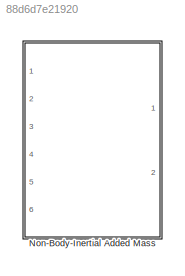
MODEL slx_88d6d7e21920
KIND library
CONFIG AbsTol = auto
CONFIG EnableMultiTasking = off
CONFIG FixedStep = auto
CONFIG MaxStep = auto
CONFIG MinStep = auto
CONFIG RelTol = 1e-3
CONFIG SampleTimeConstraint = Unconstrained
CONFIG Solver = VariableStepAuto
CONFIG SolverName = VariableStepAuto
CONFIG StartTime = 0.0
CONFIG StopTime = 10.0
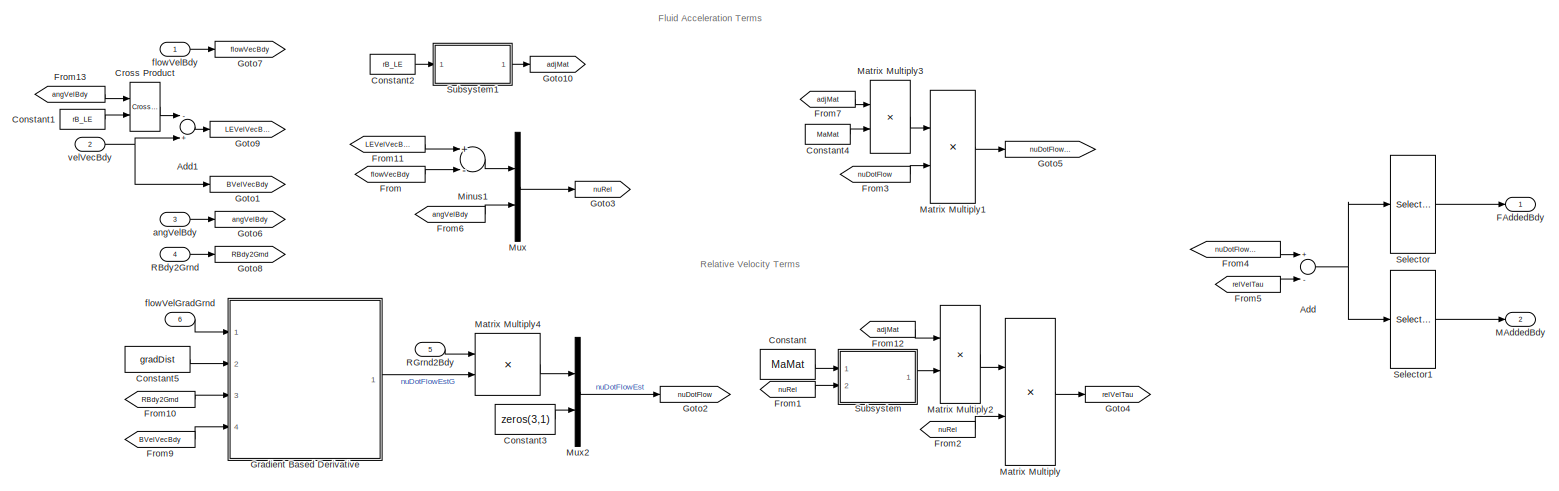
[diagram: Non-Body-Inertial Added Mass - part 1/1, most of the canvas]
BLOCK [SubSystem] Non-Body-Inertial Added Mass
  Ports = [6, 2]
  RequestExecContextInheritance = off
BLOCK [Sum] Non-Body-Inertial Added Mass/Add
  InputSameDT = off
  Inputs = +-
  OutDataTypeStr = Inherit: Inherit via internal rule
  Ports = [2, 1]
  SaturateOnIntegerOverflow = off
BLOCK [Sum] Non-Body-Inertial Added Mass/Add1
  InputSameDT = off
  Inputs = -+
  OutDataTypeStr = Inherit: Inherit via internal rule
  Ports = [2, 1]
  SaturateOnIntegerOverflow = off
BLOCK [Constant] Non-Body-Inertial Added Mass/Constant
  Value = MaMat
BLOCK [Constant] Non-Body-Inertial Added Mass/Constant1
  Value = rB_LE
BLOCK [Constant] Non-Body-Inertial Added Mass/Constant2
  Value = rB_LE
BLOCK [Constant] Non-Body-Inertial Added Mass/Constant3
  Value = zeros(3,1)
BLOCK [Constant] Non-Body-Inertial Added Mass/Constant4
  Value = MaMat
BLOCK [Constant] Non-Body-Inertial Added Mass/Constant5
  Value = gradDist
BLOCK [Reference] Non-Body-Inertial Added Mass/Cross Product  REF=vrlib/Utilities/Cross Product
  Ports = [2, 1]
  SourceBlock = vrlib/Utilities/Cross Product
  SourceProductBaseCode = VR
  SourceProductName = Simulink 3D Animation
  SourceType = Cross Product
BLOCK [Outport] Non-Body-Inertial Added Mass/FAddedBdy
  IconDisplay = Port number
BLOCK [From] Non-Body-Inertial Added Mass/From
  GotoTag = flowVecBdy
BLOCK [From] Non-Body-Inertial Added Mass/From1
  GotoTag = nuRel
BLOCK [From] Non-Body-Inertial Added Mass/From10
  GotoTag = RBdy2Grnd
BLOCK [From] Non-Body-Inertial Added Mass/From11
  GotoTag = LEVelVecBdy
BLOCK [From] Non-Body-Inertial Added Mass/From12
  GotoTag = adjMat
BLOCK [From] Non-Body-Inertial Added Mass/From13
  GotoTag = angVelBdy
BLOCK [From] Non-Body-Inertial Added Mass/From2
  GotoTag = nuRel
BLOCK [From] Non-Body-Inertial Added Mass/From3
  GotoTag = nuDotFlow
BLOCK [From] Non-Body-Inertial Added Mass/From4
  GotoTag = nuDotFlowTau
BLOCK [From] Non-Body-Inertial Added Mass/From5
  GotoTag = relVelTau
BLOCK [From] Non-Body-Inertial Added Mass/From6
  GotoTag = angVelBdy
BLOCK [From] Non-Body-Inertial Added Mass/From7
  GotoTag = adjMat
BLOCK [From] Non-Body-Inertial Added Mass/From9
  GotoTag = BVelVecBdy
BLOCK [Goto] Non-Body-Inertial Added Mass/Goto1
  GotoTag = BVelVecBdy
BLOCK [Goto] Non-Body-Inertial Added Mass/Goto10
  GotoTag = adjMat
BLOCK [Goto] Non-Body-Inertial Added Mass/Goto2
  GotoTag = nuDotFlow
BLOCK [Goto] Non-Body-Inertial Added Mass/Goto3
  GotoTag = nuRel
BLOCK [Goto] Non-Body-Inertial Added Mass/Goto4
  GotoTag = relVelTau
BLOCK [Goto] Non-Body-Inertial Added Mass/Goto5
  GotoTag = nuDotFlowTau
BLOCK [Goto] Non-Body-Inertial Added Mass/Goto6
  GotoTag = angVelBdy
BLOCK [Goto] Non-Body-Inertial Added Mass/Goto7
  GotoTag = flowVecBdy
BLOCK [Goto] Non-Body-Inertial Added Mass/Goto8
  GotoTag = RBdy2Grnd
BLOCK [Goto] Non-Body-Inertial Added Mass/Goto9
  GotoTag = LEVelVecBdy
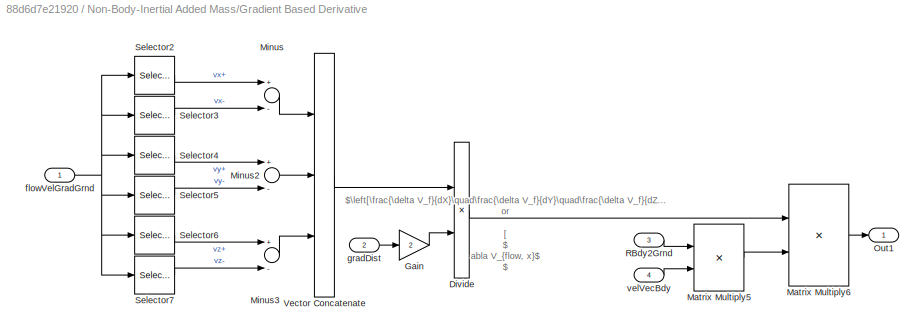
BLOCK [SubSystem] Non-Body-Inertial Added Mass/Gradient Based Derivative
  Ports = [4, 1]
  RequestExecContextInheritance = off
BLOCK [Product] Non-Body-Inertial Added Mass/Gradient Based Derivative/Divide
  InputSameDT = off
  Inputs = */
  OutDataTypeStr = Inherit: Inherit via internal rule
  Ports = [2, 1]
  RndMeth = Floor
  SaturateOnIntegerOverflow = off
BLOCK [Gain] Non-Body-Inertial Added Mass/Gradient Based Derivative/Gain
  Gain = 2
  OutDataTypeStr = Inherit: Inherit via internal rule
  ParamDataTypeStr = Inherit: Inherit via internal rule
  SaturateOnIntegerOverflow = off
BLOCK [Product] Non-Body-Inertial Added Mass/Gradient Based Derivative/Matrix Multiply5
  InputSameDT = off
  Multiplication = Matrix(*)
  OutDataTypeStr = Inherit: Inherit via internal rule
  Ports = [2, 1]
  RndMeth = Floor
  SaturateOnIntegerOverflow = off
BLOCK [Product] Non-Body-Inertial Added Mass/Gradient Based Derivative/Matrix Multiply6
  InputSameDT = off
  Multiplication = Matrix(*)
  OutDataTypeStr = Inherit: Inherit via internal rule
  Ports = [2, 1]
  RndMeth = Floor
  SaturateOnIntegerOverflow = off
BLOCK [Sum] Non-Body-Inertial Added Mass/Gradient Based Derivative/Minus
  InputSameDT = off
  Inputs = +-
  OutDataTypeStr = Inherit: Inherit via internal rule
  Ports = [2, 1]
  SaturateOnIntegerOverflow = off
BLOCK [Sum] Non-Body-Inertial Added Mass/Gradient Based Derivative/Minus2
  InputSameDT = off
  Inputs = +-
  OutDataTypeStr = Inherit: Inherit via internal rule
  Ports = [2, 1]
  SaturateOnIntegerOverflow = off
BLOCK [Sum] Non-Body-Inertial Added Mass/Gradient Based Derivative/Minus3
  InputSameDT = off
  Inputs = +-
  OutDataTypeStr = Inherit: Inherit via internal rule
  Ports = [2, 1]
  SaturateOnIntegerOverflow = off
BLOCK [Outport] Non-Body-Inertial Added Mass/Gradient Based Derivative/Out1
  IconDisplay = Port number
BLOCK [Inport] Non-Body-Inertial Added Mass/Gradient Based Derivative/RBdy2Grnd
  IconDisplay = Port number
  Port = 3
BLOCK [Selector] Non-Body-Inertial Added Mass/Gradient Based Derivative/Selector2
  IndexOptions = Select all,Index vector (dialog)
  Indices = [1 3],1
  InputPortWidth = 3
  NumberOfDimensions = 2
  OutputSizes = 1,1
  Ports = [1, 1]
BLOCK [Selector] Non-Body-Inertial Added Mass/Gradient Based Derivative/Selector3
  IndexOptions = Select all,Index vector (dialog)
  Indices = [1 3],4
  InputPortWidth = 3
  NumberOfDimensions = 2
  OutputSizes = 1,1
  Ports = [1, 1]
BLOCK [Selector] Non-Body-Inertial Added Mass/Gradient Based Derivative/Selector4
  IndexOptions = Select all,Index vector (dialog)
  Indices = [1 3],2
  InputPortWidth = 3
  NumberOfDimensions = 2
  OutputSizes = 1,1
  Ports = [1, 1]
BLOCK [Selector] Non-Body-Inertial Added Mass/Gradient Based Derivative/Selector5
  IndexOptions = Select all,Index vector (dialog)
  Indices = [1 3],5
  InputPortWidth = 3
  NumberOfDimensions = 2
  OutputSizes = 1,1
  Ports = [1, 1]
BLOCK [Selector] Non-Body-Inertial Added Mass/Gradient Based Derivative/Selector6
  IndexOptions = Select all,Index vector (dialog)
  Indices = [1 3],3
  InputPortWidth = 3
  NumberOfDimensions = 2
  OutputSizes = 1,1
  Ports = [1, 1]
BLOCK [Selector] Non-Body-Inertial Added Mass/Gradient Based Derivative/Selector7
  IndexOptions = Select all,Index vector (dialog)
  Indices = [1 3],1
  InputPortWidth = 3
  NumberOfDimensions = 2
  OutputSizes = 1,1
  Ports = [1, 1]
BLOCK [Concatenate] Non-Body-Inertial Added Mass/Gradient Based Derivative/Vector Concatenate
  ConcatenateDimension = 2
  Mode = Multidimensional array
  NumInputs = 3
  Ports = [3, 1]
BLOCK [Inport] Non-Body-Inertial Added Mass/Gradient Based Derivative/flowVelGradGrnd
  IconDisplay = Port number
BLOCK [Inport] Non-Body-Inertial Added Mass/Gradient Based Derivative/gradDist
  IconDisplay = Port number
  Port = 2
BLOCK [Inport] Non-Body-Inertial Added Mass/Gradient Based Derivative/velVecBdy
  IconDisplay = Port number
  Port = 4
BLOCK [Outport] Non-Body-Inertial Added Mass/MAddedBdy
  IconDisplay = Port number
  Port = 2
BLOCK [Product] Non-Body-Inertial Added Mass/Matrix Multiply
  InputSameDT = off
  Multiplication = Matrix(*)
  OutDataTypeStr = Inherit: Inherit via internal rule
  Ports = [2, 1]
  RndMeth = Floor
  SaturateOnIntegerOverflow = off
BLOCK [Product] Non-Body-Inertial Added Mass/Matrix Multiply1
  InputSameDT = off
  Multiplication = Matrix(*)
  OutDataTypeStr = Inherit: Inherit via internal rule
  Ports = [2, 1]
  RndMeth = Floor
  SaturateOnIntegerOverflow = off
BLOCK [Product] Non-Body-Inertial Added Mass/Matrix Multiply2
  InputSameDT = off
  Multiplication = Matrix(*)
  OutDataTypeStr = Inherit: Inherit via internal rule
  Ports = [2, 1]
  RndMeth = Floor
  SaturateOnIntegerOverflow = off
BLOCK [Product] Non-Body-Inertial Added Mass/Matrix Multiply3
  InputSameDT = off
  Multiplication = Matrix(*)
  OutDataTypeStr = Inherit: Inherit via internal rule
  Ports = [2, 1]
  RndMeth = Floor
  SaturateOnIntegerOverflow = off
BLOCK [Product] Non-Body-Inertial Added Mass/Matrix Multiply4
  InputSameDT = off
  Multiplication = Matrix(*)
  OutDataTypeStr = Inherit: Inherit via internal rule
  Ports = [2, 1]
  RndMeth = Floor
  SaturateOnIntegerOverflow = off
BLOCK [Sum] Non-Body-Inertial Added Mass/Minus1
  InputSameDT = off
  Inputs = +-
  OutDataTypeStr = Inherit: Inherit via internal rule
  Ports = [2, 1]
  SaturateOnIntegerOverflow = off
BLOCK [Mux] Non-Body-Inertial Added Mass/Mux
  DisplayOption = bar
  Inputs = 2
  Ports = [2, 1]
BLOCK [Mux] Non-Body-Inertial Added Mass/Mux2
  DisplayOption = bar
  Inputs = 2
  Ports = [2, 1]
BLOCK [Inport] Non-Body-Inertial Added Mass/RBdy2Grnd
  IconDisplay = Port number
  Port = 4
BLOCK [Inport] Non-Body-Inertial Added Mass/RGrnd2Bdy
  IconDisplay = Port number
  Port = 5
BLOCK [Selector] Non-Body-Inertial Added Mass/Selector
  IndexOptions = Index vector (dialog)
  Indices = [1 2 3]
  InputPortWidth = 6
  OutputSizes = 1
  Ports = [1, 1]
BLOCK [Selector] Non-Body-Inertial Added Mass/Selector1
  IndexOptions = Index vector (dialog)
  Indices = [4 5 6]
  InputPortWidth = 6
  OutputSizes = 1
  Ports = [1, 1]
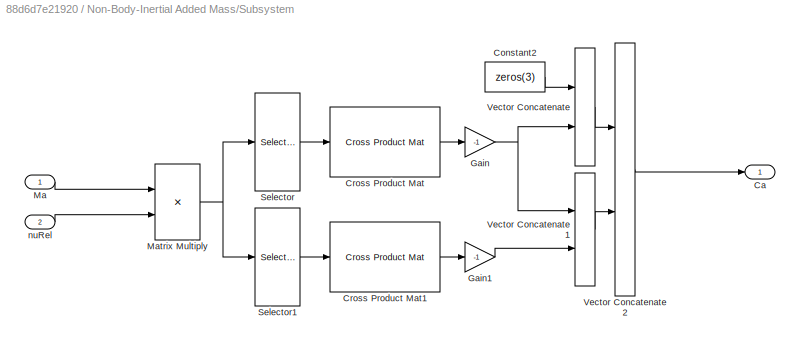
BLOCK [SubSystem] Non-Body-Inertial Added Mass/Subsystem
  Ports = [2, 1]
  RequestExecContextInheritance = off
BLOCK [Outport] Non-Body-Inertial Added Mass/Subsystem/Ca
  IconDisplay = Port number
BLOCK [Constant] Non-Body-Inertial Added Mass/Subsystem/Constant2
  Value = zeros(3)
BLOCK [Reference] Non-Body-Inertial Added Mass/Subsystem/Cross Product Mat  REF=xProdMatrix_ul/Cross Product Mat
  Ports = [1, 1]
  SourceBlock = xProdMatrix_ul/Cross Product Mat
  SourceType = SubSystem
BLOCK [Reference] Non-Body-Inertial Added Mass/Subsystem/Cross Product Mat1  REF=xProdMatrix_ul/Cross Product Mat
  Ports = [1, 1]
  SourceBlock = xProdMatrix_ul/Cross Product Mat
  SourceType = SubSystem
BLOCK [Gain] Non-Body-Inertial Added Mass/Subsystem/Gain
  Gain = -1
  OutDataTypeStr = Inherit: Inherit via internal rule
  ParamDataTypeStr = Inherit: Inherit via internal rule
  SaturateOnIntegerOverflow = off
BLOCK [Gain] Non-Body-Inertial Added Mass/Subsystem/Gain1
  Gain = -1
  OutDataTypeStr = Inherit: Inherit via internal rule
  ParamDataTypeStr = Inherit: Inherit via internal rule
  SaturateOnIntegerOverflow = off
BLOCK [Inport] Non-Body-Inertial Added Mass/Subsystem/Ma
  IconDisplay = Port number
BLOCK [Product] Non-Body-Inertial Added Mass/Subsystem/Matrix Multiply
  InputSameDT = off
  Multiplication = Matrix(*)
  OutDataTypeStr = Inherit: Inherit via internal rule
  Ports = [2, 1]
  RndMeth = Floor
  SaturateOnIntegerOverflow = off
BLOCK [Selector] Non-Body-Inertial Added Mass/Subsystem/Selector
  IndexOptions = Index vector (dialog)
  Indices = [1 2 3]
  InputPortWidth = 6
  OutputSizes = 1
  Ports = [1, 1]
BLOCK [Selector] Non-Body-Inertial Added Mass/Subsystem/Selector1
  IndexOptions = Index vector (dialog)
  Indices = [4 5 6]
  InputPortWidth = 6
  OutputSizes = 1
  Ports = [1, 1]
BLOCK [Concatenate] Non-Body-Inertial Added Mass/Subsystem/Vector Concatenate
  ConcatenateDimension = 2
  Mode = Multidimensional array
  Ports = [2, 1]
BLOCK [Concatenate] Non-Body-Inertial Added Mass/Subsystem/Vector Concatenate1
  ConcatenateDimension = 2
  Mode = Multidimensional array
  Ports = [2, 1]
BLOCK [Concatenate] Non-Body-Inertial Added Mass/Subsystem/Vector Concatenate2
  Mode = Multidimensional array
  Ports = [2, 1]
BLOCK [Inport] Non-Body-Inertial Added Mass/Subsystem/nuRel
  IconDisplay = Port number
  Port = 2
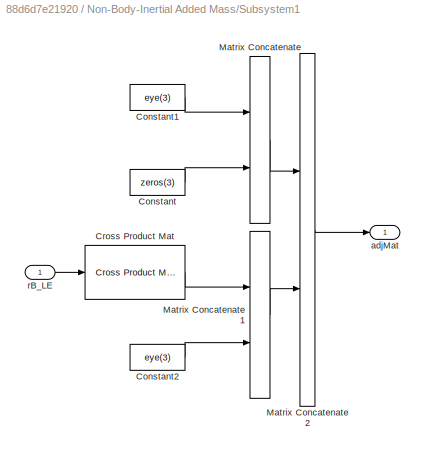
BLOCK [SubSystem] Non-Body-Inertial Added Mass/Subsystem1
  Ports = [1, 1]
  RequestExecContextInheritance = off
BLOCK [Constant] Non-Body-Inertial Added Mass/Subsystem1/Constant
  Value = zeros(3)
BLOCK [Constant] Non-Body-Inertial Added Mass/Subsystem1/Constant1
  Value = eye(3)
BLOCK [Constant] Non-Body-Inertial Added Mass/Subsystem1/Constant2
  Value = eye(3)
BLOCK [Reference] Non-Body-Inertial Added Mass/Subsystem1/Cross Product Mat  REF=xProdMatrix_ul/Cross Product Mat
  Ports = [1, 1]
  SourceBlock = xProdMatrix_ul/Cross Product Mat
  SourceType = SubSystem
BLOCK [Concatenate] Non-Body-Inertial Added Mass/Subsystem1/Matrix Concatenate
  ConcatenateDimension = 2
  Mode = Multidimensional array
  Ports = [2, 1]
BLOCK [Concatenate] Non-Body-Inertial Added Mass/Subsystem1/Matrix Concatenate1
  ConcatenateDimension = 2
  Mode = Multidimensional array
  Ports = [2, 1]
BLOCK [Concatenate] Non-Body-Inertial Added Mass/Subsystem1/Matrix Concatenate2
  Mode = Multidimensional array
  Ports = [2, 1]
BLOCK [Outport] Non-Body-Inertial Added Mass/Subsystem1/adjMat
  IconDisplay = Port number
BLOCK [Inport] Non-Body-Inertial Added Mass/Subsystem1/rB_LE
  IconDisplay = Port number
BLOCK [Inport] Non-Body-Inertial Added Mass/angVelBdy
  IconDisplay = Port number
  Port = 3
BLOCK [Inport] Non-Body-Inertial Added Mass/flowVelBdy 
  IconDisplay = Port number
BLOCK [Inport] Non-Body-Inertial Added Mass/flowVelGradGrnd
  IconDisplay = Port number
  Port = 6
BLOCK [Inport] Non-Body-Inertial Added Mass/velVecBdy
  IconDisplay = Port number
  Port = 2
ANNOTATION Non-Body-Inertial Added Mass: Fluid Acceleration Terms
ANNOTATION Non-Body-Inertial Added Mass: Relative Velocity Terms
ANNOTATION Non-Body-Inertial Added Mass/Gradient Based Derivative: $\left[\frac{\delta V_f}{dX}\quad\frac{\delta V_f}{dY}\quad\frac{\delta V_f}{dZ}\right]$ or [ $\nabla V_{flow, x}$ $\nabla V_{flow, y}$ $\nabla V_{flow, z}$ ]
LINE Non-Body-Inertial Added Mass/Add1:1 -> Non-Body-Inertial Added Mass/Goto9:1
NET Non-Body-Inertial Added Mass/Add:1 -> Non-Body-Inertial Added Mass/Selector1:1, Non-Body-Inertial Added Mass/Selector:1
LINE Non-Body-Inertial Added Mass/Constant1:1 -> Non-Body-Inertial Added Mass/Cross Product:2
LINE Non-Body-Inertial Added Mass/Constant2:1 -> Non-Body-Inertial Added Mass/Subsystem1:1
LINE Non-Body-Inertial Added Mass/Constant3:1 -> Non-Body-Inertial Added Mass/Mux2:2
LINE Non-Body-Inertial Added Mass/Constant4:1 -> Non-Body-Inertial Added Mass/Matrix Multiply3:2
LINE Non-Body-Inertial Added Mass/Constant5:1 -> Non-Body-Inertial Added Mass/Gradient Based Derivative:2
LINE Non-Body-Inertial Added Mass/Constant:1 -> Non-Body-Inertial Added Mass/Subsystem:1
LINE Non-Body-Inertial Added Mass/Cross Product:1 -> Non-Body-Inertial Added Mass/Add1:1
LINE Non-Body-Inertial Added Mass/From10:1 -> Non-Body-Inertial Added Mass/Gradient Based Derivative:3
LINE Non-Body-Inertial Added Mass/From11:1 -> Non-Body-Inertial Added Mass/Minus1:1
LINE Non-Body-Inertial Added Mass/From12:1 -> Non-Body-Inertial Added Mass/Matrix Multiply2:1
LINE Non-Body-Inertial Added Mass/From13:1 -> Non-Body-Inertial Added Mass/Cross Product:1
LINE Non-Body-Inertial Added Mass/From1:1 -> Non-Body-Inertial Added Mass/Subsystem:2
LINE Non-Body-Inertial Added Mass/From2:1 -> Non-Body-Inertial Added Mass/Matrix Multiply:2
LINE Non-Body-Inertial Added Mass/From3:1 -> Non-Body-Inertial Added Mass/Matrix Multiply1:2
LINE Non-Body-Inertial Added Mass/From4:1 -> Non-Body-Inertial Added Mass/Add:1
LINE Non-Body-Inertial Added Mass/From5:1 -> Non-Body-Inertial Added Mass/Add:2
LINE Non-Body-Inertial Added Mass/From6:1 -> Non-Body-Inertial Added Mass/Mux:2
LINE Non-Body-Inertial Added Mass/From7:1 -> Non-Body-Inertial Added Mass/Matrix Multiply3:1
LINE Non-Body-Inertial Added Mass/From9:1 -> Non-Body-Inertial Added Mass/Gradient Based Derivative:4
LINE Non-Body-Inertial Added Mass/From:1 -> Non-Body-Inertial Added Mass/Minus1:2
LINE Non-Body-Inertial Added Mass/Gradient Based Derivative/Divide:1 -> Non-Body-Inertial Added Mass/Gradient Based Derivative/Matrix Multiply6:1
LINE Non-Body-Inertial Added Mass/Gradient Based Derivative/Gain:1 -> Non-Body-Inertial Added Mass/Gradient Based Derivative/Divide:2
LINE Non-Body-Inertial Added Mass/Gradient Based Derivative/Matrix Multiply5:1 -> Non-Body-Inertial Added Mass/Gradient Based Derivative/Matrix Multiply6:2
LINE Non-Body-Inertial Added Mass/Gradient Based Derivative/Matrix Multiply6:1 -> Non-Body-Inertial Added Mass/Gradient Based Derivative/Out1:1
LINE Non-Body-Inertial Added Mass/Gradient Based Derivative/Minus2:1 -> Non-Body-Inertial Added Mass/Gradient Based Derivative/Vector Concatenate:2
LINE Non-Body-Inertial Added Mass/Gradient Based Derivative/Minus3:1 -> Non-Body-Inertial Added Mass/Gradient Based Derivative/Vector Concatenate:3
LINE Non-Body-Inertial Added Mass/Gradient Based Derivative/Minus:1 -> Non-Body-Inertial Added Mass/Gradient Based Derivative/Vector Concatenate:1
LINE Non-Body-Inertial Added Mass/Gradient Based Derivative/RBdy2Grnd:1 -> Non-Body-Inertial Added Mass/Gradient Based Derivative/Matrix Multiply5:1
LINE Non-Body-Inertial Added Mass/Gradient Based Derivative/Selector2:1 -> Non-Body-Inertial Added Mass/Gradient Based Derivative/Minus:1
LINE Non-Body-Inertial Added Mass/Gradient Based Derivative/Selector3:1 -> Non-Body-Inertial Added Mass/Gradient Based Derivative/Minus:2
LINE Non-Body-Inertial Added Mass/Gradient Based Derivative/Selector4:1 -> Non-Body-Inertial Added Mass/Gradient Based Derivative/Minus2:1
LINE Non-Body-Inertial Added Mass/Gradient Based Derivative/Selector5:1 -> Non-Body-Inertial Added Mass/Gradient Based Derivative/Minus2:2
LINE Non-Body-Inertial Added Mass/Gradient Based Derivative/Selector6:1 -> Non-Body-Inertial Added Mass/Gradient Based Derivative/Minus3:1
LINE Non-Body-Inertial Added Mass/Gradient Based Derivative/Selector7:1 -> Non-Body-Inertial Added Mass/Gradient Based Derivative/Minus3:2
LINE Non-Body-Inertial Added Mass/Gradient Based Derivative/Vector Concatenate:1 -> Non-Body-Inertial Added Mass/Gradient Based Derivative/Divide:1
NET Non-Body-Inertial Added Mass/Gradient Based Derivative/flowVelGradGrnd:1 -> Non-Body-Inertial Added Mass/Gradient Based Derivative/Selector2:1, Non-Body-Inertial Added Mass/Gradient Based Derivative/Selector3:1, Non-Body-Inertial Added Mass/Gradient Based Derivative/Selector4:1, Non-Body-Inertial Added Mass/Gradient Based Derivative/Selector5:1, Non-Body-Inertial Added Mass/Gradient Based Derivative/Selector6:1, Non-Body-Inertial Added Mass/Gradient Based Derivative/Selector7:1
LINE Non-Body-Inertial Added Mass/Gradient Based Derivative/gradDist:1 -> Non-Body-Inertial Added Mass/Gradient Based Derivative/Gain:1
LINE Non-Body-Inertial Added Mass/Gradient Based Derivative/velVecBdy:1 -> Non-Body-Inertial Added Mass/Gradient Based Derivative/Matrix Multiply5:2
LINE Non-Body-Inertial Added Mass/Gradient Based Derivative:1 -> Non-Body-Inertial Added Mass/Matrix Multiply4:2
LINE Non-Body-Inertial Added Mass/Matrix Multiply1:1 -> Non-Body-Inertial Added Mass/Goto5:1
LINE Non-Body-Inertial Added Mass/Matrix Multiply2:1 -> Non-Body-Inertial Added Mass/Matrix Multiply:1
LINE Non-Body-Inertial Added Mass/Matrix Multiply3:1 -> Non-Body-Inertial Added Mass/Matrix Multiply1:1
LINE Non-Body-Inertial Added Mass/Matrix Multiply4:1 -> Non-Body-Inertial Added Mass/Mux2:1
LINE Non-Body-Inertial Added Mass/Matrix Multiply:1 -> Non-Body-Inertial Added Mass/Goto4:1
LINE Non-Body-Inertial Added Mass/Minus1:1 -> Non-Body-Inertial Added Mass/Mux:1
LINE Non-Body-Inertial Added Mass/Mux2:1 -> Non-Body-Inertial Added Mass/Goto2:1
LINE Non-Body-Inertial Added Mass/Mux:1 -> Non-Body-Inertial Added Mass/Goto3:1
LINE Non-Body-Inertial Added Mass/RBdy2Grnd:1 -> Non-Body-Inertial Added Mass/Goto8:1
LINE Non-Body-Inertial Added Mass/RGrnd2Bdy:1 -> Non-Body-Inertial Added Mass/Matrix Multiply4:1
LINE Non-Body-Inertial Added Mass/Selector1:1 -> Non-Body-Inertial Added Mass/MAddedBdy:1
LINE Non-Body-Inertial Added Mass/Selector:1 -> Non-Body-Inertial Added Mass/FAddedBdy:1
LINE Non-Body-Inertial Added Mass/Subsystem/Constant2:1 -> Non-Body-Inertial Added Mass/Subsystem/Vector Concatenate:1
LINE Non-Body-Inertial Added Mass/Subsystem/Cross Product Mat1:1 -> Non-Body-Inertial Added Mass/Subsystem/Gain1:1
LINE Non-Body-Inertial Added Mass/Subsystem/Cross Product Mat:1 -> Non-Body-Inertial Added Mass/Subsystem/Gain:1
LINE Non-Body-Inertial Added Mass/Subsystem/Gain1:1 -> Non-Body-Inertial Added Mass/Subsystem/Vector Concatenate1:2
NET Non-Body-Inertial Added Mass/Subsystem/Gain:1 -> Non-Body-Inertial Added Mass/Subsystem/Vector Concatenate1:1, Non-Body-Inertial Added Mass/Subsystem/Vector Concatenate:2
LINE Non-Body-Inertial Added Mass/Subsystem/Ma:1 -> Non-Body-Inertial Added Mass/Subsystem/Matrix Multiply:1
NET Non-Body-Inertial Added Mass/Subsystem/Matrix Multiply:1 -> Non-Body-Inertial Added Mass/Subsystem/Selector1:1, Non-Body-Inertial Added Mass/Subsystem/Selector:1
LINE Non-Body-Inertial Added Mass/Subsystem/Selector1:1 -> Non-Body-Inertial Added Mass/Subsystem/Cross Product Mat1:1
LINE Non-Body-Inertial Added Mass/Subsystem/Selector:1 -> Non-Body-Inertial Added Mass/Subsystem/Cross Product Mat:1
LINE Non-Body-Inertial Added Mass/Subsystem/Vector Concatenate1:1 -> Non-Body-Inertial Added Mass/Subsystem/Vector Concatenate2:2
LINE Non-Body-Inertial Added Mass/Subsystem/Vector Concatenate2:1 -> Non-Body-Inertial Added Mass/Subsystem/Ca:1
LINE Non-Body-Inertial Added Mass/Subsystem/Vector Concatenate:1 -> Non-Body-Inertial Added Mass/Subsystem/Vector Concatenate2:1
LINE Non-Body-Inertial Added Mass/Subsystem/nuRel:1 -> Non-Body-Inertial Added Mass/Subsystem/Matrix Multiply:2
LINE Non-Body-Inertial Added Mass/Subsystem1/Constant1:1 -> Non-Body-Inertial Added Mass/Subsystem1/Matrix Concatenate:1
LINE Non-Body-Inertial Added Mass/Subsystem1/Constant2:1 -> Non-Body-Inertial Added Mass/Subsystem1/Matrix Concatenate1:2
LINE Non-Body-Inertial Added Mass/Subsystem1/Constant:1 -> Non-Body-Inertial Added Mass/Subsystem1/Matrix Concatenate:2
LINE Non-Body-Inertial Added Mass/Subsystem1/Cross Product Mat:1 -> Non-Body-Inertial Added Mass/Subsystem1/Matrix Concatenate1:1
LINE Non-Body-Inertial Added Mass/Subsystem1/Matrix Concatenate1:1 -> Non-Body-Inertial Added Mass/Subsystem1/Matrix Concatenate2:2
LINE Non-Body-Inertial Added Mass/Subsystem1/Matrix Concatenate2:1 -> Non-Body-Inertial Added Mass/Subsystem1/adjMat:1
LINE Non-Body-Inertial Added Mass/Subsystem1/Matrix Concatenate:1 -> Non-Body-Inertial Added Mass/Subsystem1/Matrix Concatenate2:1
LINE Non-Body-Inertial Added Mass/Subsystem1/rB_LE:1 -> Non-Body-Inertial Added Mass/Subsystem1/Cross Product Mat:1
LINE Non-Body-Inertial Added Mass/Subsystem1:1 -> Non-Body-Inertial Added Mass/Goto10:1
LINE Non-Body-Inertial Added Mass/Subsystem:1 -> Non-Body-Inertial Added Mass/Matrix Multiply2:2
LINE Non-Body-Inertial Added Mass/angVelBdy:1 -> Non-Body-Inertial Added Mass/Goto6:1
LINE Non-Body-Inertial Added Mass/flowVelBdy :1 -> Non-Body-Inertial Added Mass/Goto7:1
LINE Non-Body-Inertial Added Mass/flowVelGradGrnd:1 -> Non-Body-Inertial Added Mass/Gradient Based Derivative:1
NET Non-Body-Inertial Added Mass/velVecBdy:1 -> Non-Body-Inertial Added Mass/Add1:2, Non-Body-Inertial Added Mass/Goto1:1
note: NET lines group one-source signal fan-out (src -> all destinations, sorted); 1:1 wires keep LINE
